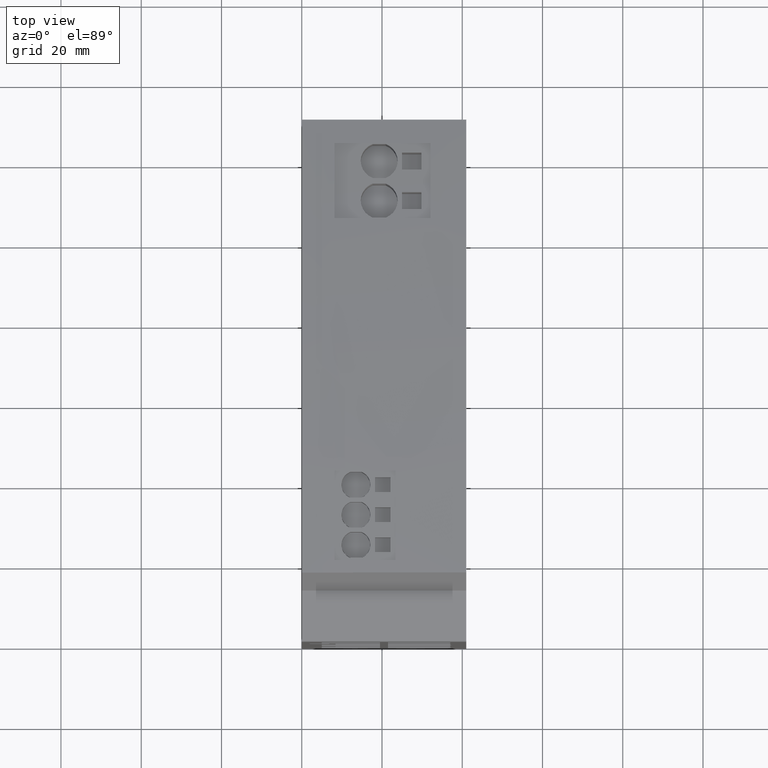
[diagram: clean part render]
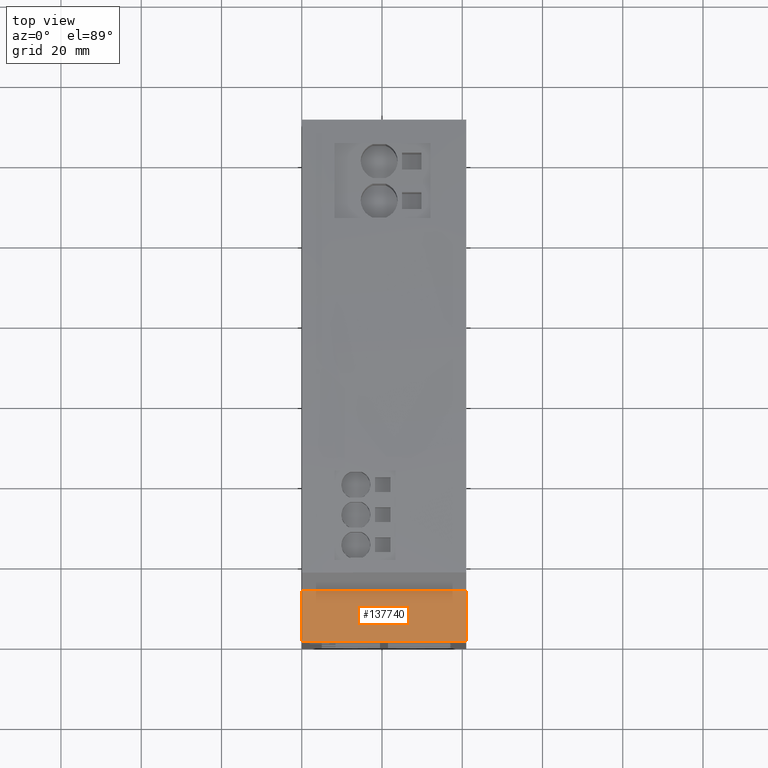
[diagram: same view with one face highlighted and labeled with its STEP entity id]
A machine part, top view. The second image highlights one B-rep face of the part: STEP entity #137740.
In plain terms, the highlighted cylindrical surface (partial cylindrical patch) has radius 75 mm, axis along (1, 0, 0).
Its self-contained STEP definition (entity closure, byte-faithful):
#137330=CARTESIAN_POINT('',(33.5253571999653,25.6578393908385,
-4.99999999999342));
#137340=DIRECTION('',(0.,0.,-1.));
#137350=DIRECTION('',(-1.,0.,0.));
#137360=AXIS2_PLACEMENT_3D('',#137330,#137340,#137350);
#137370=CYLINDRICAL_SURFACE('',#137360,74.9999999999945);
#137380=CARTESIAN_POINT('',(104.000000000004,5.32907051820075E-14,
-4.99999999999342));
#137390=DIRECTION('',(0.,0.,-1.));
#137400=VECTOR('',#137390,1.);
#137410=LINE('',#137380,#137400);
#137420=CARTESIAN_POINT('',(104.000000000004,0.,-5.50000000000001));
#137430=VERTEX_POINT('',#137420);
#137440=CARTESIAN_POINT('',(104.000000000004,0.,-46.5));
#137450=VERTEX_POINT('',#137440);
#137460=EDGE_CURVE('',#137430,#137450,#137410,.T.);
#137470=ORIENTED_EDGE('',*,*,#137460,.T.);
#137480=CARTESIAN_POINT('',(33.5253571999653,25.6578393908385,
-5.50000000000001));
#137490=DIRECTION('',(0.,0.,-1.));
#137500=DIRECTION('',(-1.,0.,0.));
#137510=AXIS2_PLACEMENT_3D('',#137480,#137490,#137500);
#137520=CIRCLE('',#137510,74.9999999999945);
#137530=CARTESIAN_POINT('',(107.380000000004,12.6005909487721,
-5.50000000000001));
#137540=VERTEX_POINT('',#137530);
#137550=EDGE_CURVE('',#137540,#137430,#137520,.T.);
#137560=ORIENTED_EDGE('',*,*,#137550,.T.);
#137570=CARTESIAN_POINT('',(107.380000000004,12.6005909487721,
-4.99999999999342));
#137580=DIRECTION('',(0.,0.,1.));
#137590=VECTOR('',#137580,1.);
#137600=LINE('',#137570,#137590);
#137610=CARTESIAN_POINT('',(107.380000000004,12.6005909487721,-46.5));
#137620=VERTEX_POINT('',#137610);
#137630=EDGE_CURVE('',#137620,#137540,#137600,.T.);
#137640=ORIENTED_EDGE('',*,*,#137630,.T.);
#137650=CARTESIAN_POINT('',(33.5253571999653,25.6578393908385,-46.5));
#137660=DIRECTION('',(0.,0.,-1.));
#137670=DIRECTION('',(-1.,0.,0.));
#137680=AXIS2_PLACEMENT_3D('',#137650,#137660,#137670);
#137690=CIRCLE('',#137680,74.9999999999945);
#137700=EDGE_CURVE('',#137620,#137450,#137690,.T.);
#137710=ORIENTED_EDGE('',*,*,#137700,.F.);
#137720=EDGE_LOOP('',(#137710,#137640,#137560,#137470));
#137730=FACE_OUTER_BOUND('',#137720,.T.);
#137740=ADVANCED_FACE('',(#137730),#137370,.T.);